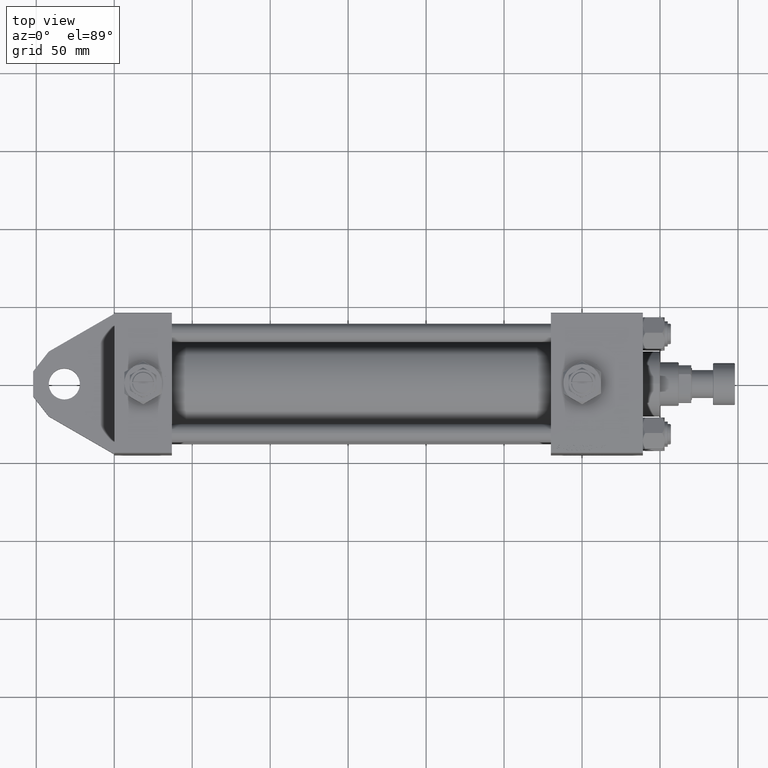
[diagram: clean part render]
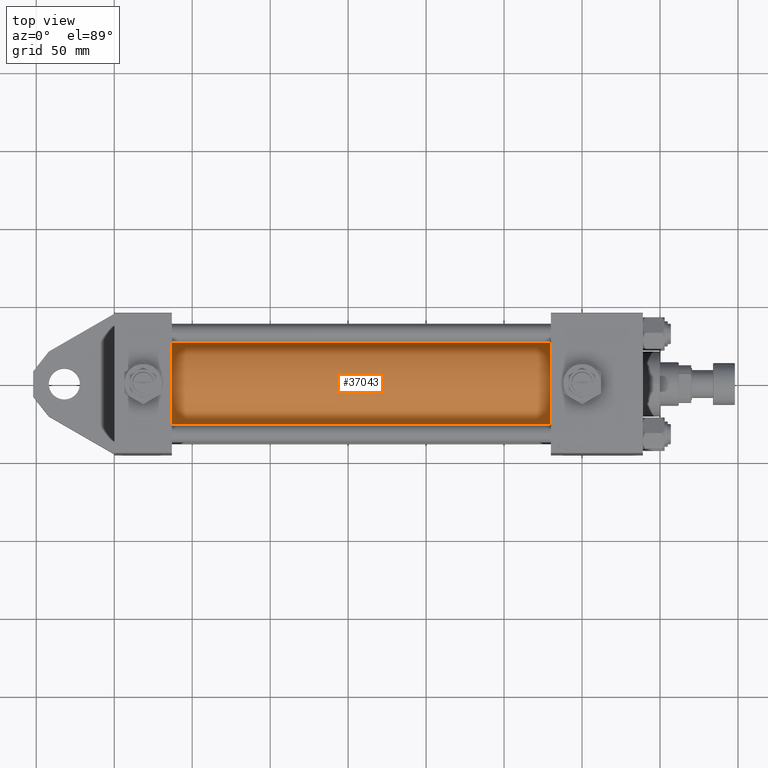
[diagram: same view with one face highlighted and labeled with its STEP entity id]
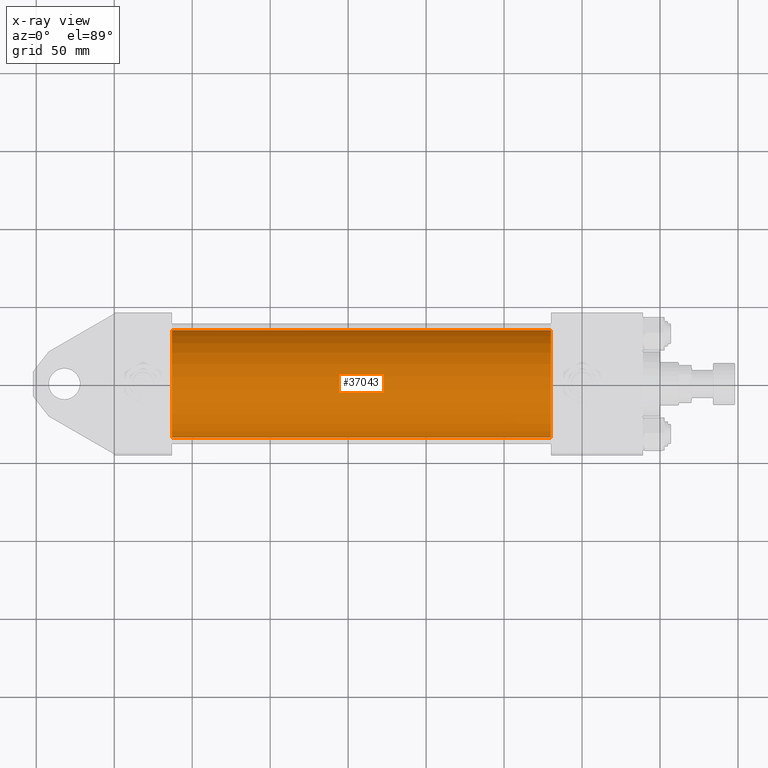
[diagram: x-ray of the same camera — body ghosted, the highlighted face saturated]
A machine part, top view. The second image highlights one B-rep face of the part: STEP entity #37043.
The next image is the same camera in x-ray: the body ghosted, the highlighted face saturated — about 0% of this face is hidden behind the body in this view.
In plain terms, the highlighted cylindrical surface (partial cylindrical patch) has radius 34.5 mm, axis along (-1, -0, 0).
Its self-contained STEP definition (entity closure, byte-faithful):
#9 = EDGE_LOOP ( 'NONE', ( #33255, #32716, #45869, #44155 ) ) ;
#2488 = VERTEX_POINT ( 'NONE', #24656 ) ;
#2777 = AXIS2_PLACEMENT_3D ( 'NONE', #26673, #34009, #10937 ) ;
#5315 = DIRECTION ( 'NONE',  ( 0.000000000000000000, 0.000000000000000000, 1.000000000000000000 ) ) ;
#6647 = VERTEX_POINT ( 'NONE', #19681 ) ;
#10937 = DIRECTION ( 'NONE',  ( 0.000000000000000000, 0.000000000000000000, -1.000000000000000000 ) ) ;
#12503 = EDGE_CURVE ( 'NONE', #46912, #6647, #15467, .T. ) ;
#12515 = DIRECTION ( 'NONE',  ( 0.000000000000000000, 0.000000000000000000, 1.000000000000000000 ) ) ;
#12767 = CARTESIAN_POINT ( 'NONE',  ( 279.9999999999999432, 1.622946243093158675E-15, -34.50000000000000000 ) ) ;
#14986 = AXIS2_PLACEMENT_3D ( 'NONE', #31467, #24086, #12515 ) ;
#15467 = LINE ( 'NONE', #42745, #31461 ) ;
#18800 = AXIS2_PLACEMENT_3D ( 'NONE', #20300, #34319, #5315 ) ;
#19681 = CARTESIAN_POINT ( 'NONE',  ( 37.00000000000000711, -2.602085213965210642E-15, 34.50000000000000000 ) ) ;
#19813 = FACE_OUTER_BOUND ( 'NONE', #9, .T. ) ;
#20300 = CARTESIAN_POINT ( 'NONE',  ( 279.9999999999999432, -2.602085213965210642E-15, 0.000000000000000000 ) ) ;
#22396 = EDGE_CURVE ( 'NONE', #2488, #46912, #34132, .T. ) ;
#24086 = DIRECTION ( 'NONE',  ( 1.000000000000000000, -0.000000000000000000, 0.000000000000000000 ) ) ;
#24656 = CARTESIAN_POINT ( 'NONE',  ( 279.9999999999999432, 1.622946243093158675E-15, -34.50000000000000000 ) ) ;
#25034 = CARTESIAN_POINT ( 'NONE',  ( 37.00000000000000711, 1.622946243093158675E-15, -34.50000000000000000 ) ) ;
#26673 = CARTESIAN_POINT ( 'NONE',  ( 279.9999999999999432, -2.602085213965210642E-15, 0.000000000000000000 ) ) ;
#26763 = CIRCLE ( 'NONE', #14986, 34.50000000000000000 ) ;
#27044 = DIRECTION ( 'NONE',  ( -1.000000000000000000, -0.000000000000000000, -0.000000000000000000 ) ) ;
#28035 = DIRECTION ( 'NONE',  ( -1.000000000000000000, -0.000000000000000000, -0.000000000000000000 ) ) ;
#29140 = CARTESIAN_POINT ( 'NONE',  ( 279.9999999999999432, -2.602085213965210642E-15, 34.50000000000000000 ) ) ;
#31461 = VECTOR ( 'NONE', #27044, 1000.000000000000000 ) ;
#31467 = CARTESIAN_POINT ( 'NONE',  ( 37.00000000000000711, -2.602085213965210642E-15, 0.000000000000000000 ) ) ;
#32716 = ORIENTED_EDGE ( 'NONE', *, *, #33976, .T. ) ;
#33255 = ORIENTED_EDGE ( 'NONE', *, *, #22396, .F. ) ;
#33976 = EDGE_CURVE ( 'NONE', #2488, #35339, #34889, .T. ) ;
#34009 = DIRECTION ( 'NONE',  ( 1.000000000000000000, 0.000000000000000000, 0.000000000000000000 ) ) ;
#34132 = CIRCLE ( 'NONE', #2777, 34.50000000000000000 ) ;
#34319 = DIRECTION ( 'NONE',  ( -1.000000000000000000, -0.000000000000000000, -0.000000000000000000 ) ) ;
#34889 = LINE ( 'NONE', #12767, #37536 ) ;
#35285 = CYLINDRICAL_SURFACE ( 'NONE', #18800, 34.50000000000000000 ) ;
#35339 = VERTEX_POINT ( 'NONE', #25034 ) ;
#37043 = ADVANCED_FACE ( 'NONE', ( #19813 ), #35285, .T. ) ;
#37536 = VECTOR ( 'NONE', #28035, 1000.000000000000000 ) ;
#42498 = EDGE_CURVE ( 'NONE', #35339, #6647, #26763, .T. ) ;
#42745 = CARTESIAN_POINT ( 'NONE',  ( 279.9999999999999432, -2.602085213965210642E-15, 34.50000000000000000 ) ) ;
#44155 = ORIENTED_EDGE ( 'NONE', *, *, #12503, .F. ) ;
#45869 = ORIENTED_EDGE ( 'NONE', *, *, #42498, .T. ) ;
#46912 = VERTEX_POINT ( 'NONE', #29140 ) ;